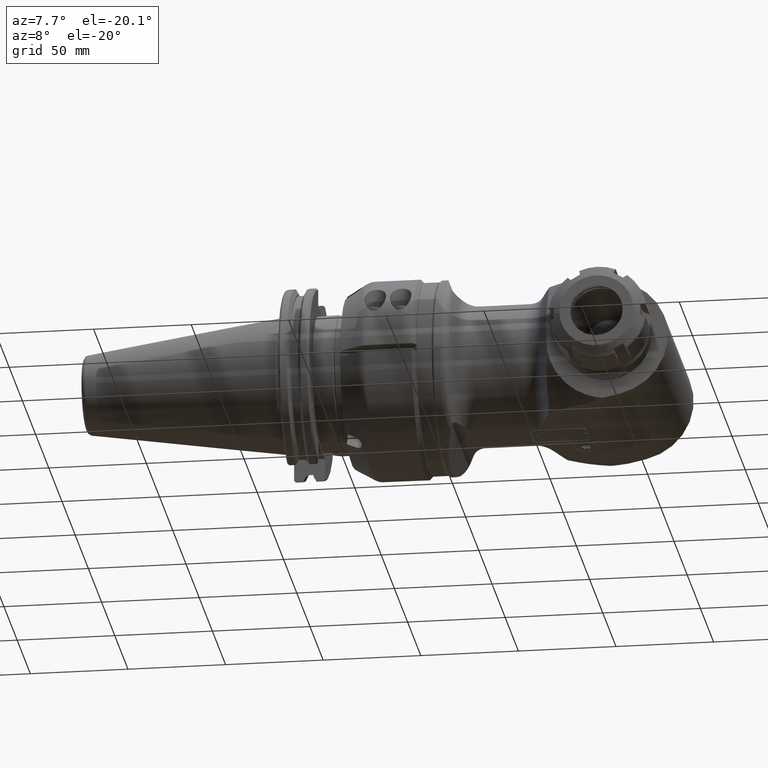
[diagram: clean part render]
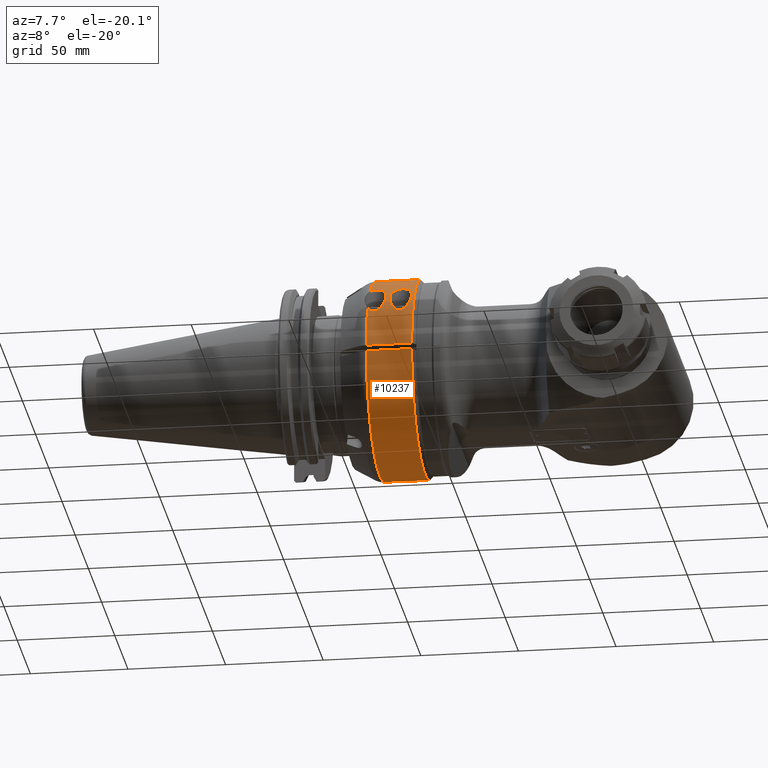
[diagram: same view with one face highlighted and labeled with its STEP entity id]
A machine part, auxiliary view. The second image highlights one B-rep face of the part: STEP entity #10237.
In plain terms, the highlighted cylindrical surface (partial cylindrical patch) has radius 51 mm, axis along (1, 0, 0).
Its self-contained STEP definition (entity closure, byte-faithful):
#453=B_SPLINE_CURVE_WITH_KNOTS('',3,(#20814,#20815,#20816,#20817,#20818,
#20819,#20820,#20821,#20822,#20823,#20824,#20825,#20826,#20827,#20828,#20829,
#20830,#20831),.UNSPECIFIED.,.F.,.F.,(4,2,2,2,2,2,2,2,4),(1.24497996375057,
1.57211089183856,1.89924181992655,2.10031433028339,2.30138684064023,2.50245935099707,
2.70353186135391,3.0306627894419,3.35779371752989),.UNSPECIFIED.);
#456=B_SPLINE_CURVE_WITH_KNOTS('',3,(#20913,#20914,#20915,#20916,#20917,
#20918),.UNSPECIFIED.,.F.,.F.,(4,2,4),(-0.351622839102922,-0.201072510356838,
0.),.UNSPECIFIED.);
#457=B_SPLINE_CURVE_WITH_KNOTS('',3,(#20920,#20921,#20922,#20923,#20924,
#20925,#20926,#20927,#20928,#20929,#20930,#20931,#20932,#20933,#20934,#20935,
#20936,#20937,#20938,#20939,#20940,#20941,#20942,#20943,#20944,#20945),
 .UNSPECIFIED.,.F.,.F.,(4,2,2,2,2,2,2,2,2,2,2,2,4),(0.,0.201072510356838,
0.402145020713677,0.729275948801668,1.05640687688966,1.45814522272358,1.85988356855749,
2.08063520459886,2.19101102261954,2.30138684064023,2.41176265866091,2.52213847668159,
2.7154535046118),.UNSPECIFIED.);
#458=B_SPLINE_CURVE_WITH_KNOTS('',3,(#20949,#20950,#20951,#20952,#20953,
#20954,#20955,#20956,#20957,#20958,#20959,#20960,#20961,#20962,#20963,#20964,
#20965,#20966,#20967,#20968,#20969,#20970,#20971),.UNSPECIFIED.,.F.,.F.,
(4,2,2,2,2,3,2,2,2,2,4),(-1.24497996375057,-0.843241617916652,-0.441503272082734,
-0.220751636041367,-0.110375818020684,0.,0.110375818020684,0.220751636041367,
0.441503272082734,0.843241617916652,1.24497996375057),.UNSPECIFIED.);
#595=FACE_BOUND('',#3077,.T.);
#1038=LINE('',#20854,#1799);
#1040=LINE('',#20858,#1801);
#1046=LINE('',#20907,#1807);
#1047=LINE('',#20948,#1808);
#1799=VECTOR('',#12762,20.23205080757);
#1801=VECTOR('',#12764,20.23205080757);
#1807=VECTOR('',#12778,23.23206191748);
#1808=VECTOR('',#12787,23.23206611221);
#2220=CYLINDRICAL_SURFACE('',#11003,51.);
#2512=FACE_OUTER_BOUND('',#3076,.T.);
#3076=EDGE_LOOP('',(#8164,#8165,#8166,#8167,#8168,#8169,#8170,#8171,#8172,
#8173,#8174));
#3077=EDGE_LOOP('',(#8175,#8176));
#3603=CIRCLE('',#11004,51.);
#3604=CIRCLE('',#11005,51.);
#3605=CIRCLE('',#11006,51.);
#3606=CIRCLE('',#11007,51.);
#3607=CIRCLE('',#11008,51.);
#4464=VERTEX_POINT('',#20810);
#4466=VERTEX_POINT('',#20813);
#4474=VERTEX_POINT('',#20852);
#4475=VERTEX_POINT('',#20853);
#4476=VERTEX_POINT('',#20855);
#4477=VERTEX_POINT('',#20857);
#4488=VERTEX_POINT('',#20903);
#4489=VERTEX_POINT('',#20904);
#4490=VERTEX_POINT('',#20906);
#4491=VERTEX_POINT('',#20910);
#4492=VERTEX_POINT('',#20912);
#4493=VERTEX_POINT('',#20919);
#4494=VERTEX_POINT('',#20946);
#5782=EDGE_CURVE('',#4466,#4464,#453,.T.);
#5793=EDGE_CURVE('',#4474,#4475,#1038,.T.);
#5795=EDGE_CURVE('',#4477,#4476,#1040,.T.);
#5807=EDGE_CURVE('',#4488,#4489,#3603,.T.);
#5808=EDGE_CURVE('',#4488,#4490,#1046,.T.);
#5809=EDGE_CURVE('',#4477,#4490,#3604,.T.);
#5810=EDGE_CURVE('',#4474,#4476,#3605,.T.);
#5811=EDGE_CURVE('',#4491,#4475,#3606,.T.);
#5812=EDGE_CURVE('',#4491,#4492,#456,.T.);
#5813=EDGE_CURVE('',#4492,#4493,#457,.T.);
#5814=EDGE_CURVE('',#4494,#4493,#3607,.T.);
#5815=EDGE_CURVE('',#4494,#4489,#1047,.T.);
#5816=EDGE_CURVE('',#4464,#4466,#458,.T.);
#8164=ORIENTED_EDGE('',*,*,#5807,.F.);
#8165=ORIENTED_EDGE('',*,*,#5808,.T.);
#8166=ORIENTED_EDGE('',*,*,#5809,.F.);
#8167=ORIENTED_EDGE('',*,*,#5795,.T.);
#8168=ORIENTED_EDGE('',*,*,#5810,.F.);
#8169=ORIENTED_EDGE('',*,*,#5793,.T.);
#8170=ORIENTED_EDGE('',*,*,#5811,.F.);
#8171=ORIENTED_EDGE('',*,*,#5812,.T.);
#8172=ORIENTED_EDGE('',*,*,#5813,.T.);
#8173=ORIENTED_EDGE('',*,*,#5814,.F.);
#8174=ORIENTED_EDGE('',*,*,#5815,.T.);
#8175=ORIENTED_EDGE('',*,*,#5816,.T.);
#8176=ORIENTED_EDGE('',*,*,#5782,.T.);
#10237=ADVANCED_FACE('',(#2512,#595),#2220,.T.);
#11003=AXIS2_PLACEMENT_3D('',#20902,#12774,#12775);
#11004=AXIS2_PLACEMENT_3D('',#20905,#12776,#12777);
#11005=AXIS2_PLACEMENT_3D('',#20908,#12779,#12780);
#11006=AXIS2_PLACEMENT_3D('',#20909,#12781,#12782);
#11007=AXIS2_PLACEMENT_3D('',#20911,#12783,#12784);
#11008=AXIS2_PLACEMENT_3D('',#20947,#12785,#12786);
#12762=DIRECTION('',(-1.,0.,0.));
#12764=DIRECTION('',(1.,0.,0.));
#12774=DIRECTION('center_axis',(1.,0.,0.));
#12775=DIRECTION('ref_axis',(0.,1.,1.05873409698834E-10));
#12776=DIRECTION('center_axis',(1.,0.,0.));
#12777=DIRECTION('ref_axis',(0.,1.,0.));
#12778=DIRECTION('',(-1.,-3.620724304585E-11,1.230523343791E-9));
#12779=DIRECTION('center_axis',(-1.,0.,0.));
#12780=DIRECTION('ref_axis',(0.,0.818627450980411,-0.574324904998308));
#12781=DIRECTION('center_axis',(-1.,0.,0.));
#12782=DIRECTION('ref_axis',(0.,1.,0.));
#12783=DIRECTION('center_axis',(-1.,0.,0.));
#12784=DIRECTION('ref_axis',(0.,-0.711205879844998,0.702983781088798));
#12785=DIRECTION('center_axis',(-1.,0.,0.));
#12786=DIRECTION('ref_axis',(0.,-0.999567380468613,0.0294117647058804));
#12787=DIRECTION('',(1.,4.9878538981E-11,1.695142412605E-9));
#20810=CARTESIAN_POINT('',(-15.5,-40.7216512827,30.70418728464));
#20813=CARTESIAN_POINT('',(-26.5,-40.7216512827,30.7041872846388));
#20814=CARTESIAN_POINT('Ctrl Pts',(-26.5,-40.7216512827,30.7041872846388));
#20815=CARTESIAN_POINT('Ctrl Pts',(-26.5,-40.0651617871045,31.5748612439451));
#20816=CARTESIAN_POINT('Ctrl Pts',(-26.3775309176086,-39.319256727814,32.5000944024137));
#20817=CARTESIAN_POINT('Ctrl Pts',(-25.7586754272403,-37.8511872002494,
34.1986505928683));
#20818=CARTESIAN_POINT('Ctrl Pts',(-25.2627488095064,-37.1297545962508,
34.9727734951554));
#20819=CARTESIAN_POINT('Ctrl Pts',(-24.149351972259,-36.1782586100401,35.9500095679527));
#20820=CARTESIAN_POINT('Ctrl Pts',(-23.6039156243507,-35.8317714924385,
36.2931969488346));
#20821=CARTESIAN_POINT('Ctrl Pts',(-22.364786222781,-35.3524177755747,36.760284817991));
#20822=CARTESIAN_POINT('Ctrl Pts',(-21.6702417011895,-35.2216512827,36.8840789626077));
#20823=CARTESIAN_POINT('Ctrl Pts',(-20.3297582988105,-35.2216512827,36.8840789626077));
#20824=CARTESIAN_POINT('Ctrl Pts',(-19.635213777219,-35.3524177755747,36.760284817991));
#20825=CARTESIAN_POINT('Ctrl Pts',(-18.3960843756493,-35.8317714924385,
36.2931969488346));
#20826=CARTESIAN_POINT('Ctrl Pts',(-17.850648027741,-36.1782586100401,35.9500095679527));
#20827=CARTESIAN_POINT('Ctrl Pts',(-16.7372511904936,-37.1297545962508,
34.9727734951554));
#20828=CARTESIAN_POINT('Ctrl Pts',(-16.2413245727597,-37.8511872002494,
34.1986505928683));
#20829=CARTESIAN_POINT('Ctrl Pts',(-15.6224690823914,-39.319256727814,32.5000944024137));
#20830=CARTESIAN_POINT('Ctrl Pts',(-15.5,-40.0651617871045,31.5748612439451));
#20831=CARTESIAN_POINT('Ctrl Pts',(-15.5,-40.7216512827,30.7041872846388));
#20852=CARTESIAN_POINT('',(-17.,41.75,29.29057015492));
#20853=CARTESIAN_POINT('',(-37.23205080757,41.75,29.29057015492));
#20854=CARTESIAN_POINT('',(-17.,41.75,29.29057015492));
#20855=CARTESIAN_POINT('',(-17.,41.75,-29.29057015492));
#20857=CARTESIAN_POINT('',(-37.23205080757,41.75,-29.29057015492));
#20858=CARTESIAN_POINT('',(-37.23205080757,41.75,-29.29057015492));
#20902=CARTESIAN_POINT('Origin',(-43.,0.,0.));
#20903=CARTESIAN_POINT('',(-14.,-50.9779364039,-1.5));
#20904=CARTESIAN_POINT('',(-14.,-50.9779364039,1.5));
#20905=CARTESIAN_POINT('Origin',(-14.,0.,0.));
#20906=CARTESIAN_POINT('',(-37.2320508150874,-50.9779364043201,-1.49999998570621));
#20907=CARTESIAN_POINT('',(-14.,-50.9779364039,-1.5));
#20908=CARTESIAN_POINT('Origin',(-37.23205080757,0.,0.));
#20909=CARTESIAN_POINT('Origin',(-17.,0.,0.));
#20910=CARTESIAN_POINT('',(-37.23205080757,-36.27149987209,35.85217283553));
#20911=CARTESIAN_POINT('Origin',(-37.23205080757,0.,0.));
#20912=CARTESIAN_POINT('',(-34.,-35.2216512827,36.8840789626077));
#20913=CARTESIAN_POINT('Ctrl Pts',(-37.2320508075659,-36.2714998720946,
35.8521728355289));
#20914=CARTESIAN_POINT('Ctrl Pts',(-36.872037357752,-36.0100297211167,36.116701141561));
#20915=CARTESIAN_POINT('Ctrl Pts',(-36.44824163253,-35.7715494474255,36.3518780139684));
#20916=CARTESIAN_POINT('Ctrl Pts',(-35.364786222781,-35.3524177755747,36.760284817991));
#20917=CARTESIAN_POINT('Ctrl Pts',(-34.6702417011895,-35.2216512827,36.8840789626077));
#20918=CARTESIAN_POINT('Ctrl Pts',(-34.,-35.2216512827,36.8840789626077));
#20919=CARTESIAN_POINT('',(-37.23205080757,-45.1718026933,23.67505525733));
#20920=CARTESIAN_POINT('Ctrl Pts',(-34.,-35.2216512827,36.8840789626077));
#20921=CARTESIAN_POINT('Ctrl Pts',(-33.3297582988105,-35.2216512827,36.8840789626077));
#20922=CARTESIAN_POINT('Ctrl Pts',(-32.635213777219,-35.3524177755747,36.760284817991));
#20923=CARTESIAN_POINT('Ctrl Pts',(-31.3960843756493,-35.8317714924385,
36.2931969488346));
#20924=CARTESIAN_POINT('Ctrl Pts',(-30.850648027741,-36.1782586100401,35.9500095679527));
#20925=CARTESIAN_POINT('Ctrl Pts',(-29.7372511904936,-37.1297545962508,
34.9727734951554));
#20926=CARTESIAN_POINT('Ctrl Pts',(-29.2413245727597,-37.8511872002494,
34.1986505928683));
#20927=CARTESIAN_POINT('Ctrl Pts',(-28.6224690823914,-39.319256727814,32.5000944024137));
#20928=CARTESIAN_POINT('Ctrl Pts',(-28.5,-40.0651617871045,31.5748612439451));
#20929=CARTESIAN_POINT('Ctrl Pts',(-28.5,-41.5278636624324,29.6349422633357));
#20930=CARTESIAN_POINT('Ctrl Pts',(-28.6828935944427,-42.355228362554,28.4428786872814));
#20931=CARTESIAN_POINT('Ctrl Pts',(-29.4026147018995,-43.8528254301532,
26.0747465478085));
#20932=CARTESIAN_POINT('Ctrl Pts',(-29.9314939989374,-44.5246315328702,
24.8972647332227));
#20933=CARTESIAN_POINT('Ctrl Pts',(-31.001270294294,-45.3572445916551,23.326334884601));
#20934=CARTESIAN_POINT('Ctrl Pts',(-31.480842706606,-45.6482368635351,22.7481982089167));
#20935=CARTESIAN_POINT('Ctrl Pts',(-32.3308258147761,-45.9710043968678,
22.0845481334827));
#20936=CARTESIAN_POINT('Ctrl Pts',(-32.6354867073276,-46.0599916909384,
21.8974583438779));
#20937=CARTESIAN_POINT('Ctrl Pts',(-33.286197560497,-46.1851905126261,21.6321449190877));
#20938=CARTESIAN_POINT('Ctrl Pts',(-33.6320806065977,-46.2216512827,21.5536296873747));
#20939=CARTESIAN_POINT('Ctrl Pts',(-34.3679193934023,-46.2216512827,21.5536296873747));
#20940=CARTESIAN_POINT('Ctrl Pts',(-34.713802439503,-46.1851905126261,21.6321449190877));
#20941=CARTESIAN_POINT('Ctrl Pts',(-35.3645132926724,-46.0599916909384,
21.8974583438779));
#20942=CARTESIAN_POINT('Ctrl Pts',(-35.6691741852239,-45.9710043968678,
22.0845481334827));
#20943=CARTESIAN_POINT('Ctrl Pts',(-36.4487292658961,-45.6749807840842,
22.6932093917128));
#20944=CARTESIAN_POINT('Ctrl Pts',(-36.8782785168307,-45.4287400225037,
23.1848210334514));
#20945=CARTESIAN_POINT('Ctrl Pts',(-37.2320508075737,-45.1718026932997,
23.6750552573295));
#20946=CARTESIAN_POINT('',(-37.2320508231036,-50.9779364044793,1.499999980309));
#20947=CARTESIAN_POINT('Origin',(-37.23205080757,0.,0.));
#20948=CARTESIAN_POINT('',(-37.23206611221,-50.97793640506,1.499999960618));
#20949=CARTESIAN_POINT('Ctrl Pts',(-15.5,-40.7216512827,30.7041872846388));
#20950=CARTESIAN_POINT('Ctrl Pts',(-15.5,-41.5278636624324,29.6349422633357));
#20951=CARTESIAN_POINT('Ctrl Pts',(-15.6828935944427,-42.355228362554,28.4428786872814));
#20952=CARTESIAN_POINT('Ctrl Pts',(-16.4026147018995,-43.8528254301532,
26.0747465478085));
#20953=CARTESIAN_POINT('Ctrl Pts',(-16.9314939989374,-44.5246315328702,
24.8972647332227));
#20954=CARTESIAN_POINT('Ctrl Pts',(-18.001270294294,-45.3572445916551,23.326334884601));
#20955=CARTESIAN_POINT('Ctrl Pts',(-18.480842706606,-45.6482368635351,22.7481982089167));
#20956=CARTESIAN_POINT('Ctrl Pts',(-19.3308258147761,-45.9710043968678,
22.0845481334827));
#20957=CARTESIAN_POINT('Ctrl Pts',(-19.6354867073276,-46.0599916909384,
21.8974583438779));
#20958=CARTESIAN_POINT('Ctrl Pts',(-20.286197560497,-46.1851905126261,21.6321449190877));
#20959=CARTESIAN_POINT('Ctrl Pts',(-20.6320806065977,-46.2216512827,21.5536296873747));
#20960=CARTESIAN_POINT('Ctrl Pts',(-21.,-46.2216512827,21.5536296873747));
#20961=CARTESIAN_POINT('Ctrl Pts',(-21.3679193934023,-46.2216512827,21.5536296873747));
#20962=CARTESIAN_POINT('Ctrl Pts',(-21.713802439503,-46.1851905126261,21.6321449190877));
#20963=CARTESIAN_POINT('Ctrl Pts',(-22.3645132926724,-46.0599916909384,
21.8974583438779));
#20964=CARTESIAN_POINT('Ctrl Pts',(-22.6691741852239,-45.9710043968678,
22.0845481334827));
#20965=CARTESIAN_POINT('Ctrl Pts',(-23.519157293394,-45.6482368635351,22.7481982089167));
#20966=CARTESIAN_POINT('Ctrl Pts',(-23.998729705706,-45.3572445916551,23.326334884601));
#20967=CARTESIAN_POINT('Ctrl Pts',(-25.0685060010626,-44.5246315328702,
24.8972647332227));
#20968=CARTESIAN_POINT('Ctrl Pts',(-25.5973852981005,-43.8528254301532,
26.0747465478085));
#20969=CARTESIAN_POINT('Ctrl Pts',(-26.3171064055573,-42.355228362554,28.4428786872814));
#20970=CARTESIAN_POINT('Ctrl Pts',(-26.5,-41.5278636624324,29.6349422633357));
#20971=CARTESIAN_POINT('Ctrl Pts',(-26.5,-40.7216512827,30.7041872846388));